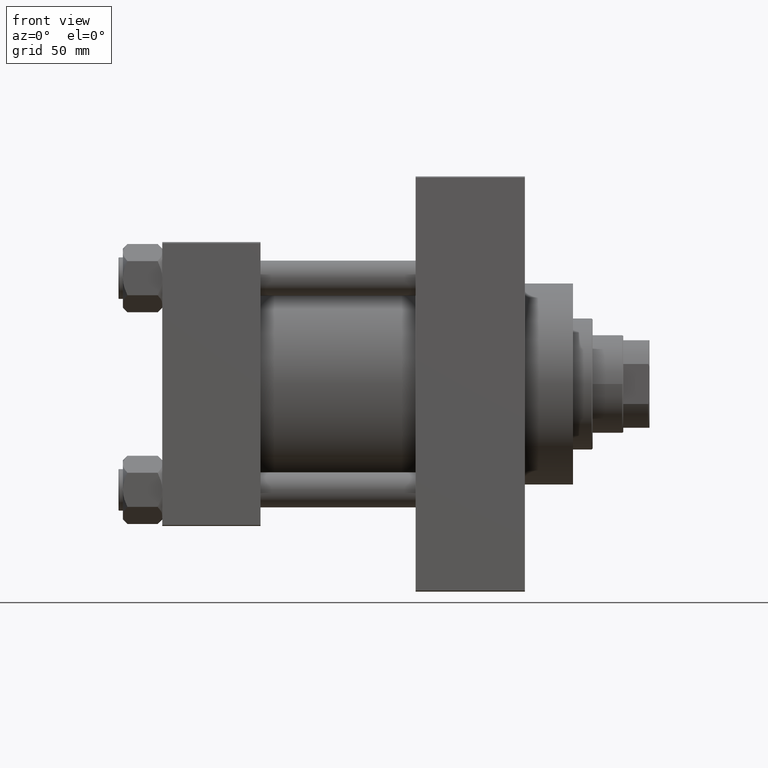
[diagram: clean part render]
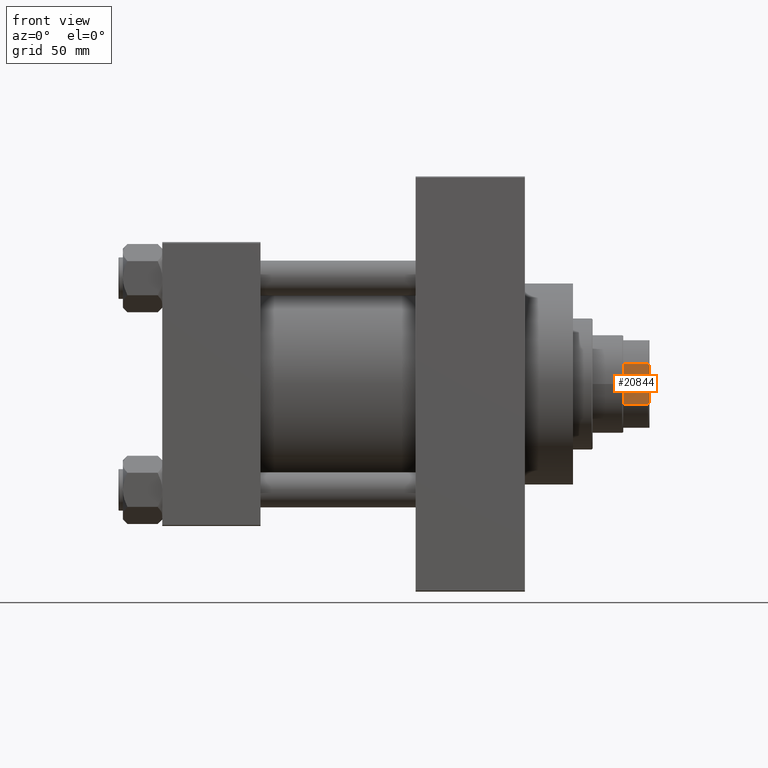
[diagram: same view with one face highlighted and labeled with its STEP entity id]
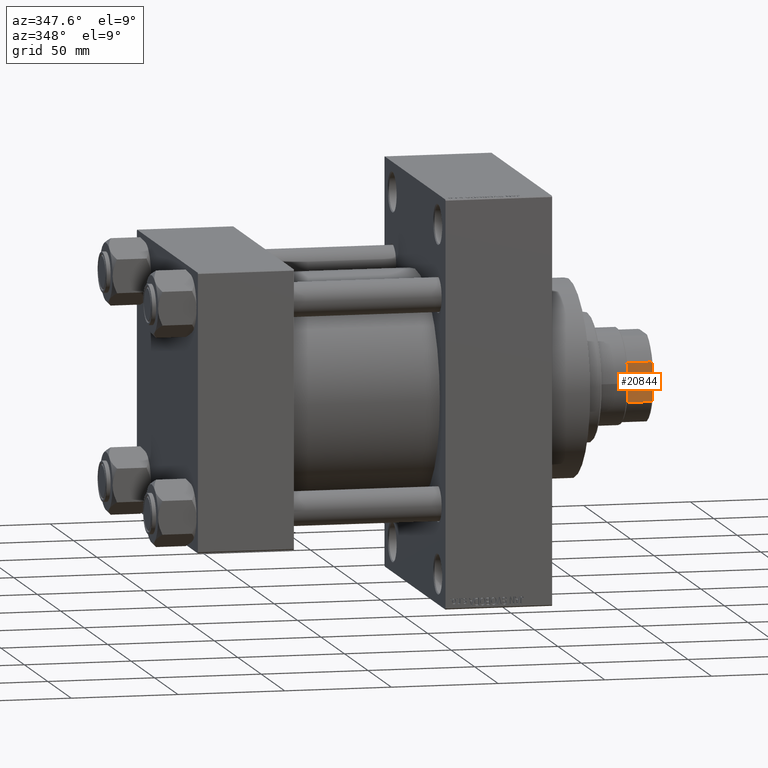
[diagram: same view with one face highlighted and labeled with its STEP entity id]
A machine part, front view. The second image highlights one B-rep face of the part: STEP entity #20844.
A second angle (auxiliary view) of the same face is appended — the face is thin or edge-on in the first view.
In plain terms, the highlighted planar face has unit normal (0, 1, 0).
Its self-contained STEP definition (entity closure, byte-faithful):
#113 = B_SPLINE_CURVE_WITH_KNOTS ( 'NONE', 3,
 ( #37311, #30084, #23071, #41880 ),
 .UNSPECIFIED., .F., .F.,
 ( 4, 4 ),
 ( 0.000000000000000000, 0.001369799431184198692 ),
 .UNSPECIFIED. ) ;
#1698 = CARTESIAN_POINT ( 'NONE',  ( 19.99999999999999289, -9.165151389911693869, 166.0000000000000000 ) ) ;
#1839 = EDGE_CURVE ( 'NONE', #21554, #38889, #26830, .T. ) ;
#3360 = ORIENTED_EDGE ( 'NONE', *, *, #1839, .T. ) ;
#4429 = CARTESIAN_POINT ( 'NONE',  ( 19.99999999999999645, 20.00000000000000355, 166.0000000000000000 ) ) ;
#5600 = CARTESIAN_POINT ( 'NONE',  ( 19.99999999999999289, -9.165151389911693869, -0.001000000000001000089 ) ) ;
#7043 = EDGE_LOOP ( 'NONE', ( #3360, #15738, #23530, #42418, #29266, #25490 ) ) ;
#8007 = DIRECTION ( 'NONE',  ( -0.000000000000000000, -0.000000000000000000, 1.000000000000000000 ) ) ;
#8302 = VECTOR ( 'NONE', #8007, 1000.000000000000000 ) ;
#9127 = DIRECTION ( 'NONE',  ( -1.000000000000000000, -8.673617379884034239E-17, 0.000000000000000000 ) ) ;
#9594 = DIRECTION ( 'NONE',  ( 8.673617379884034239E-17, -1.000000000000000000, 0.000000000000000000 ) ) ;
#9736 = EDGE_CURVE ( 'NONE', #39065, #45667, #24881, .T. ) ;
#10913 = CARTESIAN_POINT ( 'NONE',  ( 19.99999999999999289, -9.165151389911693869, 177.5000000000000284 ) ) ;
#11890 = CARTESIAN_POINT ( 'NONE',  ( 19.99999999999999645, 9.165151389911683211, 177.5000000000000284 ) ) ;
#12168 = VECTOR ( 'NONE', #27691, 1000.000000000000000 ) ;
#15544 = CARTESIAN_POINT ( 'NONE',  ( 20.00000000000000000, -7.889866919029757675, 178.0000000000000284 ) ) ;
#15738 = ORIENTED_EDGE ( 'NONE', *, *, #28422, .T. ) ;
#16357 = FACE_OUTER_BOUND ( 'NONE', #7043, .T. ) ;
#16501 = CARTESIAN_POINT ( 'NONE',  ( 20.00000000000000000, 7.889866919029772774, 178.0000000000000284 ) ) ;
#16698 = DIRECTION ( 'NONE',  ( -0.000000000000000000, -0.000000000000000000, 1.000000000000000000 ) ) ;
#17051 = CARTESIAN_POINT ( 'NONE',  ( 19.99999999999999645, 9.165151389911683211, 166.0000000000000000 ) ) ;
#19447 = EDGE_CURVE ( 'NONE', #43372, #45667, #24396, .T. ) ;
#20844 = ADVANCED_FACE ( 'NONE', ( #16357 ), #45753, .F. ) ;
#21554 = VERTEX_POINT ( 'NONE', #17051 ) ;
#22705 = CARTESIAN_POINT ( 'NONE',  ( 19.99999999999999645, 9.165151389911683211, -0.001000000000001000089 ) ) ;
#22986 = LINE ( 'NONE', #4429, #34502 ) ;
#23071 = CARTESIAN_POINT ( 'NONE',  ( 19.99999999999999645, 8.318618722654433029, 177.8426607129352703 ) ) ;
#23530 = ORIENTED_EDGE ( 'NONE', *, *, #30158, .F. ) ;
#24396 = LINE ( 'NONE', #5600, #34262 ) ;
#24881 = B_SPLINE_CURVE_WITH_KNOTS ( 'NONE', 3,
 ( #15544, #30262, #29792, #32919 ),
 .UNSPECIFIED., .F., .F.,
 ( 4, 4 ),
 ( 1.734723475976807094E-18, 0.001369799431184224063 ),
 .UNSPECIFIED. ) ;
#25490 = ORIENTED_EDGE ( 'NONE', *, *, #30644, .T. ) ;
#26830 = LINE ( 'NONE', #22705, #8302 ) ;
#27691 = DIRECTION ( 'NONE',  ( -8.673617379884035472E-17, 1.000000000000000000, -0.000000000000000000 ) ) ;
#28422 = EDGE_CURVE ( 'NONE', #38889, #35266, #113, .T. ) ;
#29266 = ORIENTED_EDGE ( 'NONE', *, *, #19447, .F. ) ;
#29792 = CARTESIAN_POINT ( 'NONE',  ( 20.00000000000000000, -8.743570658524367545, 177.6756296011924974 ) ) ;
#30084 = CARTESIAN_POINT ( 'NONE',  ( 19.99999999999999645, 8.743570658524369321, 177.6756296011924974 ) ) ;
#30158 = EDGE_CURVE ( 'NONE', #39065, #35266, #31294, .T. ) ;
#30262 = CARTESIAN_POINT ( 'NONE',  ( 20.00000000000000000, -8.318618722654418818, 177.8426607129352419 ) ) ;
#30644 = EDGE_CURVE ( 'NONE', #43372, #21554, #22986, .T. ) ;
#31294 = LINE ( 'NONE', #45998, #12168 ) ;
#32919 = CARTESIAN_POINT ( 'NONE',  ( 19.99999999999999289, -9.165151389911693869, 177.5000000000000284 ) ) ;
#33609 = DIRECTION ( 'NONE',  ( -8.673617379884035472E-17, 1.000000000000000000, -0.000000000000000000 ) ) ;
#34262 = VECTOR ( 'NONE', #16698, 1000.000000000000000 ) ;
#34502 = VECTOR ( 'NONE', #33609, 1000.000000000000000 ) ;
#35054 = AXIS2_PLACEMENT_3D ( 'NONE', #42626, #9127, #9594 ) ;
#35266 = VERTEX_POINT ( 'NONE', #16501 ) ;
#35719 = CARTESIAN_POINT ( 'NONE',  ( 20.00000000000000000, -7.889866919029757675, 178.0000000000000284 ) ) ;
#37311 = CARTESIAN_POINT ( 'NONE',  ( 19.99999999999999645, 9.165151389911683211, 177.5000000000000284 ) ) ;
#38889 = VERTEX_POINT ( 'NONE', #11890 ) ;
#39065 = VERTEX_POINT ( 'NONE', #35719 ) ;
#41880 = CARTESIAN_POINT ( 'NONE',  ( 20.00000000000000000, 7.889866919029772774, 178.0000000000000284 ) ) ;
#42418 = ORIENTED_EDGE ( 'NONE', *, *, #9736, .T. ) ;
#42626 = CARTESIAN_POINT ( 'NONE',  ( 19.99999999999999645, 20.00000000000000355, 178.0000000000000284 ) ) ;
#43372 = VERTEX_POINT ( 'NONE', #1698 ) ;
#45667 = VERTEX_POINT ( 'NONE', #10913 ) ;
#45753 = PLANE ( 'NONE',  #35054 ) ;
#45998 = CARTESIAN_POINT ( 'NONE',  ( 19.99999999999999645, 20.00000000000000355, 178.0000000000000284 ) ) ;